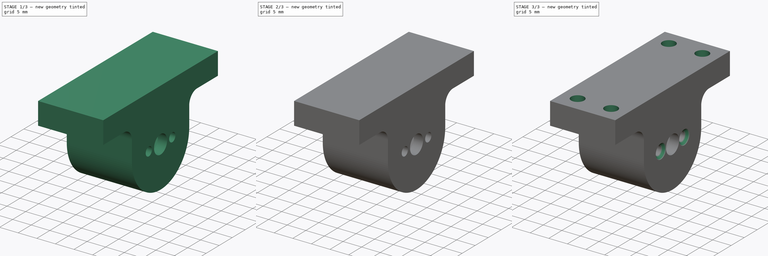
[diagram: build sequence overview — one tinted view per stage of 3, left to right]
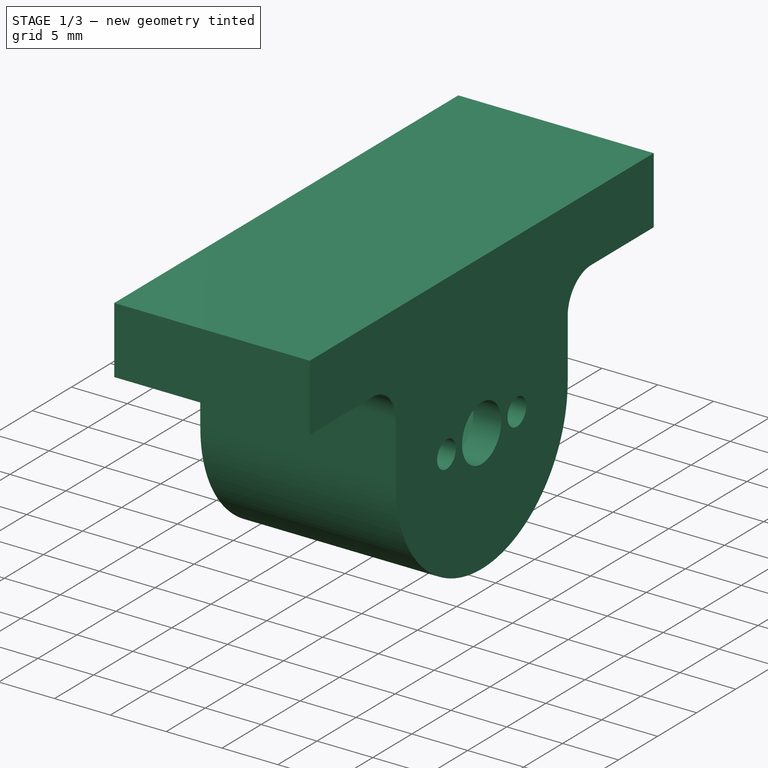
[diagram: stage 1 of 3 — iso view after this stage's code; geometry added in this stage tinted green]
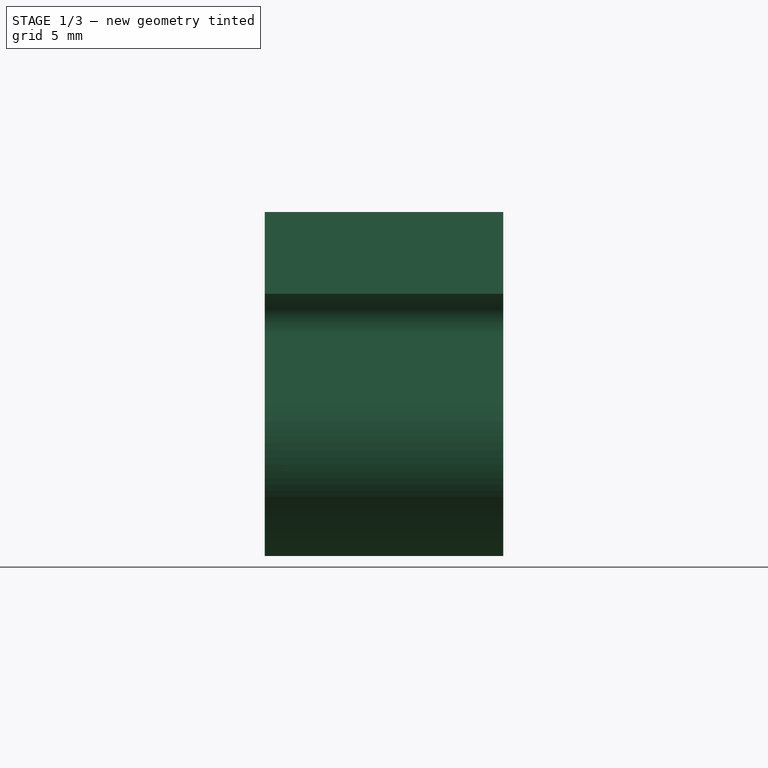
[diagram: stage 1 of 3 — front view after this stage's code; geometry added in this stage tinted green]
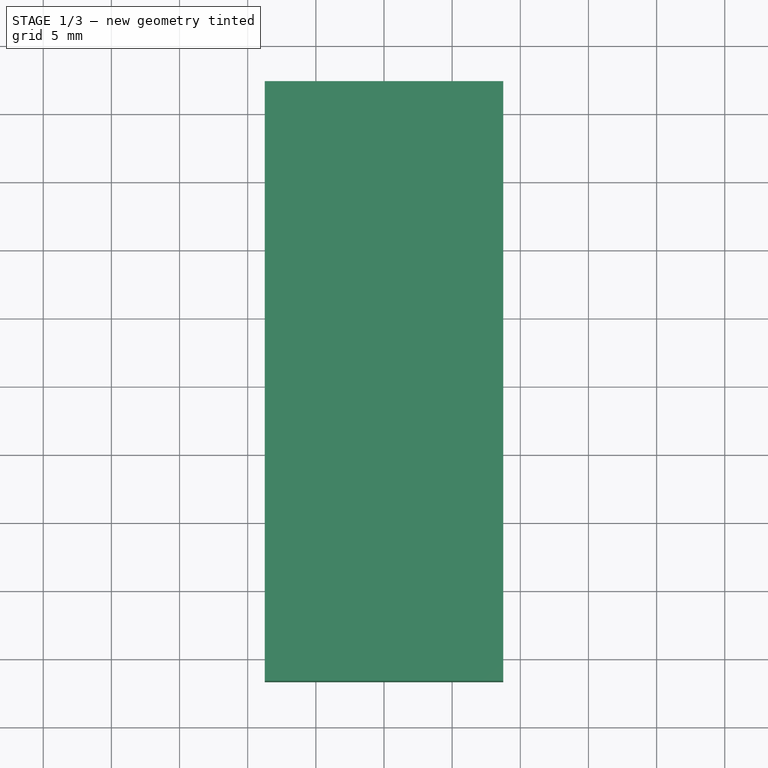
[diagram: stage 1 of 3 — top view after this stage's code; geometry added in this stage tinted green]
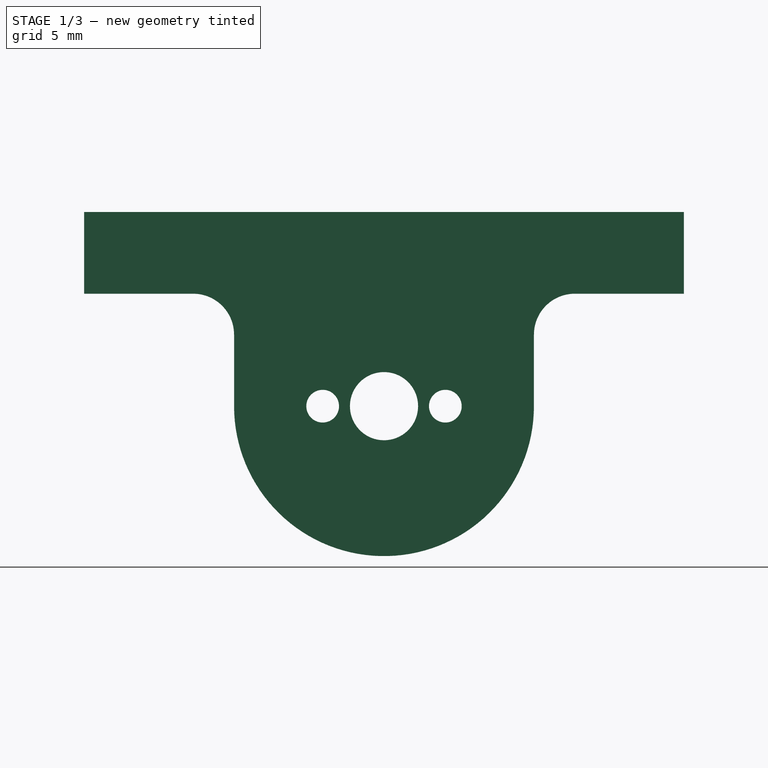
[diagram: stage 1 of 3 — right view after this stage's code; geometry added in this stage tinted green]
FCSTD DOCUMENT  (FreeCAD 0.17R13541 (Git))
Label: Minirobots_2-motor-support
License: All rights reserved
LicenseURL: http://en.wikipedia.org/wiki/All_rights_reserved
objects: Sketcher::SketchObject×4, PartDesign::Pocket×3, PartDesign::Pad×1, PartDesign::Chamfer×1, PartDesign::Body×1
note: 14 computed .brp shape members not serialized (recipe doc carries the construction recipe); baked Part::Feature solids carry a one-line shape summary decoded from their .brp

FEATURE [Sketcher::SketchObject] Sketch
  MapMode = 5
  Placement = pos=(0,0,0) rot=(0.57735,0.57735,0.57735;2.0944rad)
  Support = -> [YZ_Plane]
  sketch-geometry (13):
    g0: LineSegment StartX=-22 StartY=14.25 StartZ=0 EndX=22 EndY=14.25 EndZ=0
    g1: LineSegment StartX=22 StartY=14.25 StartZ=0 EndX=22 EndY=8.25 EndZ=0
    g2: LineSegment StartX=22 StartY=8.25 StartZ=0 EndX=14 EndY=8.25 EndZ=0
    g3: LineSegment StartX=11 StartY=5.25 StartZ=0 EndX=11 EndY=0 EndZ=0
    g4: LineSegment StartX=-11 StartY=0 StartZ=0 EndX=-11 EndY=5.25 EndZ=0
    g5: LineSegment StartX=-14 StartY=8.25 StartZ=0 EndX=-22 EndY=8.25 EndZ=0
    g6: LineSegment StartX=-22 StartY=8.25 StartZ=0 EndX=-22 EndY=14.25 EndZ=0
    g7: ArcOfCircle CenterX=0 CenterY=0 CenterZ=0 NormalX=0 NormalY=0 NormalZ=1 AngleXU=0 Radius=11 StartAngle=3.14159 EndAngle=6.28319
    g8: ArcOfCircle CenterX=-14 CenterY=5.25 CenterZ=0 NormalX=0 NormalY=0 NormalZ=1 AngleXU=0 Radius=3 StartAngle=0 EndAngle=1.5708
    g9: ArcOfCircle CenterX=14 CenterY=5.25 CenterZ=0 NormalX=0 NormalY=0 NormalZ=1 AngleXU=0 Radius=3 StartAngle=1.5708 EndAngle=3.14159
    g10: Circle CenterX=-4.5 CenterY=0 CenterZ=0 NormalX=0 NormalY=0 NormalZ=1 AngleXU=0 Radius=1.2
    g11: Circle CenterX=4.5 CenterY=0 CenterZ=0 NormalX=0 NormalY=0 NormalZ=1 AngleXU=0 Radius=1.2
    g12: Circle CenterX=0 CenterY=0 CenterZ=0 NormalX=0 NormalY=0 NormalZ=1 AngleXU=0 Radius=2.5
  constraints (34):
    c: Horizontal(g0)
    c: Coincident(g0,g1)
    c: Vertical(g1)
    c: Coincident(g1,g2)
    c: Horizontal(g2)
    c: Vertical(g3)
    c: Vertical(g4)
    c: Horizontal(g5)
    c: Coincident(g5,g6)
    c: Coincident(g6,g0)
    c: Vertical(g6)
    c: Symmetric(g0,g0,g-2)
    c: Radius(g7) = 11
    c: Coincident(g-1,g7)
    c: Tangent(g4,g7) = 1.5708
    c: Tangent(g7,g3) = 1.5708
    c: Equal(g6,g1)
    c: Tangent(g5,g8) = -1.5708
    c: Tangent(g4,g8) = -1.5708
    c: Tangent(g2,g9) = -1.5708
    c: Tangent(g3,g9) = -1.5708
    c: DistanceY(g6,g6) = 6
    c: DistanceY(g0) = 14.25
    c: Equal(g8,g9)
    c: DistanceX(g0,g0) = 44
    c: Radius(g9) = 3
    c: PointOnObject(g10,g-1)
    c: PointOnObject(g11,g-1)
    c: Equal(g10,g11)
    c: Radius(g10) = 1.2
    c: Symmetric(g11,g10,g-2)
    c: DistanceX(g10,g11) = 9
    c: Coincident(g12,g-1)
    c: Radius(g12) = 2.5
FEATURE [PartDesign::Pad] Pad
  Length = 17.5
  Length2 = 100
  Midplane = true
  Placement = pos=(0,0,0) rot=(0.57735,0.57735,0.57735;2.0944rad)
  Profile = -> Sketch
  Type = 0
FEATURE [Sketcher::SketchObject] Sketch001
  MapMode = 5
  Placement = pos=(-8.75,0,0) rot=(0.57735,0.57735,-0.57735;4.18879rad)
  Support = -> [Pad]
  sketch-geometry (1):
    g0: Circle CenterX=0 CenterY=0 CenterZ=0 NormalX=0 NormalY=0 NormalZ=1 AngleXU=0 Radius=8.25
  constraints (2):
    c: Coincident(g0,g-1)
    c: Radius(g0) = 8.25
FEATURE [PartDesign::Pocket] Pocket
  BaseFeature = -> Pad
  Length = 15
  Length2 = 100
  Placement = pos=(0,0,0) rot=(0.57735,0.57735,0.57735;2.0944rad)
  Profile = -> Sketch001
  Type = 0
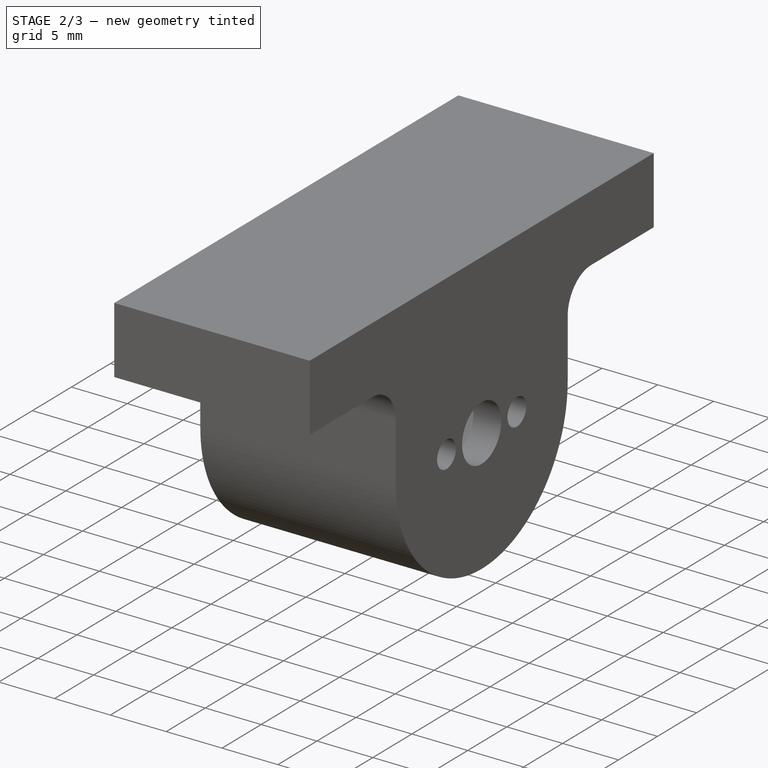
[diagram: stage 2 of 3 — iso view after this stage's code; geometry added in this stage tinted green]
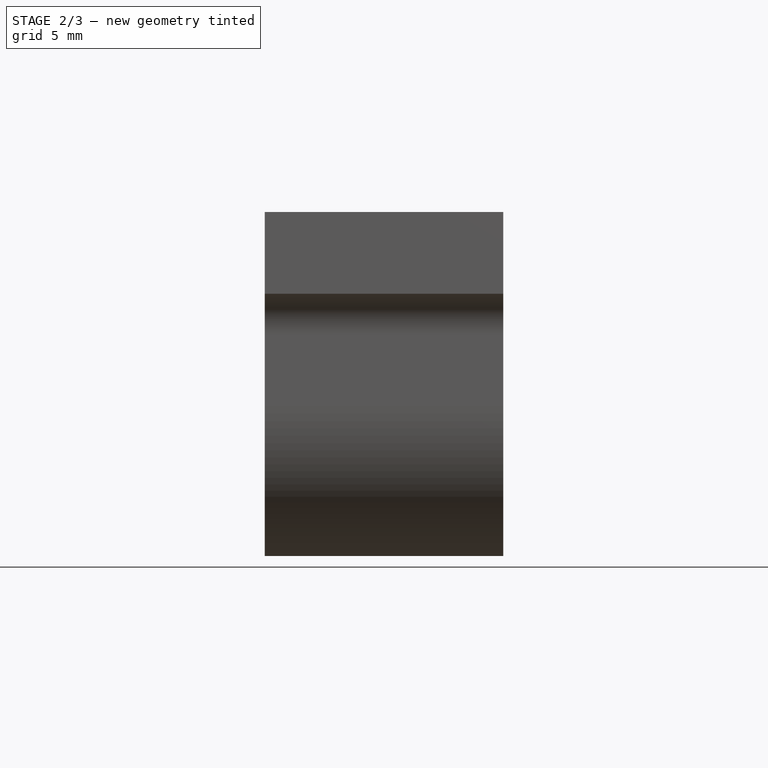
[diagram: stage 2 of 3 — front view after this stage's code; geometry added in this stage tinted green]
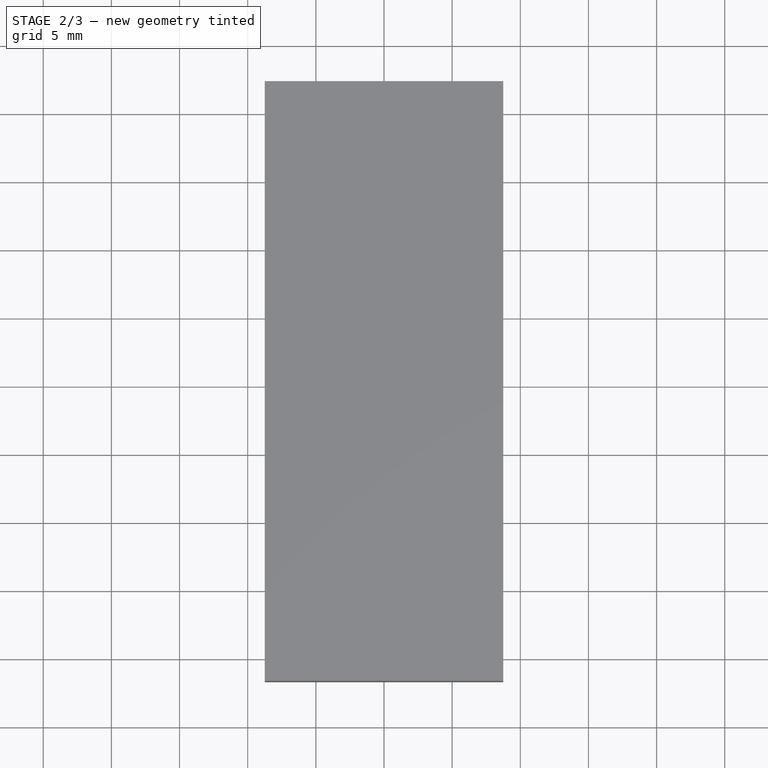
[diagram: stage 2 of 3 — top view after this stage's code; geometry added in this stage tinted green]
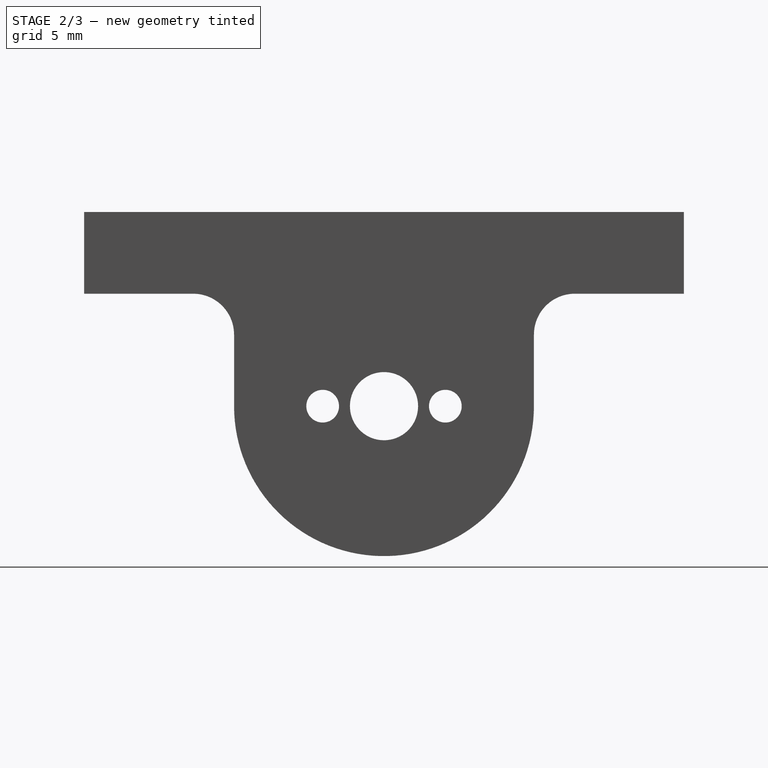
[diagram: stage 2 of 3 — right view after this stage's code; geometry added in this stage tinted green]
FEATURE [Sketcher::SketchObject] Sketch002
  MapMode = 5
  Placement = pos=(0,0,8.25) rot=(0.707107,0.707107,0;3.14159rad)
  Support = -> [Pocket]
  sketch-geometry (32):
    g0: LineSegment [constr] StartX=-17.5 StartY=4.5 StartZ=0 EndX=17.5 EndY=4.5 EndZ=0
    g1: LineSegment [constr] StartX=17.5 StartY=4.5 StartZ=0 EndX=17.5 EndY=-4.5 EndZ=0
    g2: LineSegment [constr] StartX=17.5 StartY=-4.5 StartZ=0 EndX=-17.5 EndY=-4.5 EndZ=0
    g3: LineSegment [constr] StartX=-17.5 StartY=-4.5 StartZ=0 EndX=-17.5 EndY=4.5 EndZ=0
    g4: LineSegment StartX=-15.8257 StartY=7.4 StartZ=0 EndX=-19.1743 EndY=7.4 EndZ=0
    g5: LineSegment StartX=-19.1743 StartY=7.4 StartZ=0 EndX=-20.8486 EndY=4.5 EndZ=0
    g6: LineSegment StartX=-20.8486 StartY=4.5 StartZ=0 EndX=-19.1743 EndY=1.6 EndZ=0
    g7: LineSegment StartX=-19.1743 StartY=1.6 StartZ=0 EndX=-15.8257 EndY=1.6 EndZ=0
    g8: LineSegment StartX=-15.8257 StartY=1.6 StartZ=0 EndX=-14.1514 EndY=4.5 EndZ=0
    g9: LineSegment StartX=-14.1514 StartY=4.5 StartZ=0 EndX=-15.8257 EndY=7.4 EndZ=0
    g10: Circle [constr] CenterX=-17.5 CenterY=4.5 CenterZ=0 NormalX=0 NormalY=0 NormalZ=1 AngleXU=0 Radius=3.34863
    g11: LineSegment StartX=-14.1514 StartY=-4.5 StartZ=0 EndX=-15.8257 EndY=-1.6 EndZ=0
    g12: LineSegment StartX=-15.8257 StartY=-1.6 StartZ=0 EndX=-19.1743 EndY=-1.6 EndZ=0
    g13: LineSegment StartX=-19.1743 StartY=-1.6 StartZ=0 EndX=-20.8486 EndY=-4.5 EndZ=0
    g14: LineSegment StartX=-20.8486 StartY=-4.5 StartZ=0 EndX=-19.1743 EndY=-7.4 EndZ=0
    g15: LineSegment StartX=-19.1743 StartY=-7.4 StartZ=0 EndX=-15.8257 EndY=-7.4 EndZ=0
    g16: LineSegment StartX=-15.8257 StartY=-7.4 StartZ=0 EndX=-14.1514 EndY=-4.5 EndZ=0
    g17: Circle [constr] CenterX=-17.5 CenterY=-4.5 CenterZ=0 NormalX=0 NormalY=0 NormalZ=1 AngleXU=0 Radius=3.34863
    g18: LineSegment StartX=19.1743 StartY=1.6 StartZ=0 EndX=20.8486 EndY=4.5 EndZ=0
    g19: LineSegment StartX=20.8486 StartY=4.5 StartZ=0 EndX=19.1743 EndY=7.4 EndZ=0
    g20: LineSegment StartX=19.1743 StartY=7.4 StartZ=0 EndX=15.8257 EndY=7.4 EndZ=0
    g21: LineSegment StartX=15.8257 StartY=7.4 StartZ=0 EndX=14.1514 EndY=4.5 EndZ=0
    g22: LineSegment StartX=14.1514 StartY=4.5 StartZ=0 EndX=15.8257 EndY=1.6 EndZ=0
    g23: LineSegment StartX=15.8257 StartY=1.6 StartZ=0 EndX=19.1743 EndY=1.6 EndZ=0
    g24: Circle [constr] CenterX=17.5 CenterY=4.5 CenterZ=0 NormalX=0 NormalY=0 NormalZ=1 AngleXU=0 Radius=3.34863
    g25: LineSegment StartX=19.1743 StartY=-7.4 StartZ=0 EndX=20.8486 EndY=-4.5 EndZ=0
    g26: LineSegment StartX=20.8486 StartY=-4.5 StartZ=0 EndX=19.1743 EndY=-1.6 EndZ=0
    g27: LineSegment StartX=19.1743 StartY=-1.6 StartZ=0 EndX=15.8257 EndY=-1.6 EndZ=0
    g28: LineSegment StartX=15.8257 StartY=-1.6 StartZ=0 EndX=14.1514 EndY=-4.5 EndZ=0
    g29: LineSegment StartX=14.1514 StartY=-4.5 StartZ=0 EndX=15.8257 EndY=-7.4 EndZ=0
    g30: LineSegment StartX=15.8257 StartY=-7.4 StartZ=0 EndX=19.1743 EndY=-7.4 EndZ=0
    g31: Circle [constr] CenterX=17.5 CenterY=-4.5 CenterZ=0 NormalX=0 NormalY=0 NormalZ=1 AngleXU=0 Radius=3.34863
  constraints (76):
    c: Coincident(g0,g1)
    c: Coincident(g1,g2)
    c: Coincident(g2,g3)
    c: Coincident(g3,g0)
    c: Horizontal(g0)
    c: Horizontal(g2)
    c: Vertical(g1)
    c: Vertical(g3)
    c: Coincident(g4,g5)
    c: Coincident(g5,g6)
    c: Coincident(g6,g7)
    c: Coincident(g7,g8)
    c: Coincident(g8,g9)
    c: Coincident(g9,g4)
    c: Equal(g4, g5-g9) x5
    c: PointOnObject(g4,g10)
    c: PointOnObject(g5,g10)
    c: PointOnObject(g6,g10)
    c: PointOnObject(g7,g10)
    c: PointOnObject(g8,g10)
    c: PointOnObject(g9,g10)
    c: Coincident(g10,g0)
    c: Coincident(g11,g12)
    c: Coincident(g12,g13)
    c: Coincident(g13,g14)
    c: Coincident(g14,g15)
    c: Coincident(g15,g16)
    c: Coincident(g16,g11)
    c: Equal(g11, g12-g16) x5
    c: PointOnObject(g11,g17)
    c: PointOnObject(g12,g17)
    c: PointOnObject(g13,g17)
    c: PointOnObject(g14,g17)
    c: PointOnObject(g15,g17)
    c: PointOnObject(g16,g17)
    c: Coincident(g17,g2)
    c: Coincident(g18,g19)
    c: Coincident(g19,g20)
    c: Coincident(g20,g21)
    c: Coincident(g21,g22)
    c: Coincident(g22,g23)
    c: Coincident(g23,g18)
    c: Equal(g18, g19-g23) x5
    c: PointOnObject(g18,g24)
    c: PointOnObject(g19,g24)
    c: PointOnObject(g20,g24)
    c: PointOnObject(g21,g24)
    c: PointOnObject(g22,g24)
    c: PointOnObject(g23,g24)
    c: Coincident(g25,g26)
    c: Coincident(g26,g27)
    c: Coincident(g27,g28)
    c: Coincident(g28,g29)
    c: Coincident(g29,g30)
    c: Coincident(g30,g25)
    c: Equal(g25, g26-g30) x5
    c: PointOnObject(g25,g31)
    c: PointOnObject(g26,g31)
    c: PointOnObject(g27,g31)
    c: PointOnObject(g28,g31)
    c: PointOnObject(g29,g31)
    c: PointOnObject(g30,g31)
    c: Coincident(g31,g1)
    c: Equal(g17,g10)
    c: Equal(g10,g24)
    c: Equal(g24,g31)
    c: Horizontal(g7)
    c: Horizontal(g15)
    c: Horizontal(g30)
    c: Horizontal(g23)
    c: Symmetric(g0,g2,g-1)
    c: Symmetric(g0,g0,g-2)
    c: DistanceY(g3,g3) = 9
    c: DistanceY(g6,g4) = 5.8
    c: Coincident(g24,g0)
    c: DistanceX(g0,g0) = 35
FEATURE [PartDesign::Pocket] Pocket001
  BaseFeature = -> Pocket
  Length = 3
  Length2 = 100
  Placement = pos=(0,0,0) rot=(0.57735,0.57735,0.57735;2.0944rad)
  Profile = -> Sketch002
  Type = 0
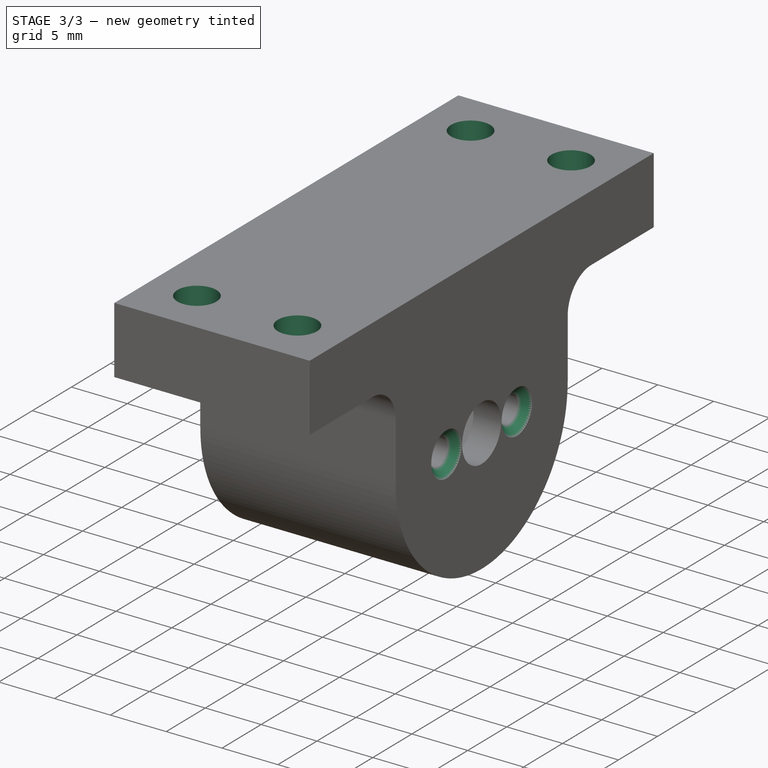
[diagram: stage 3 of 3 — iso view after this stage's code; geometry added in this stage tinted green]
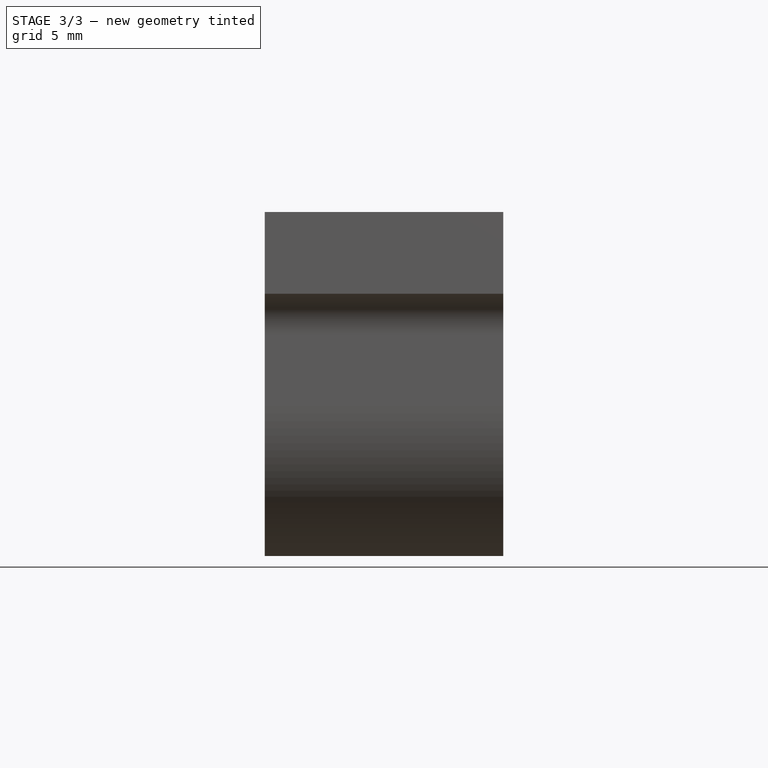
[diagram: stage 3 of 3 — front view after this stage's code; geometry added in this stage tinted green]
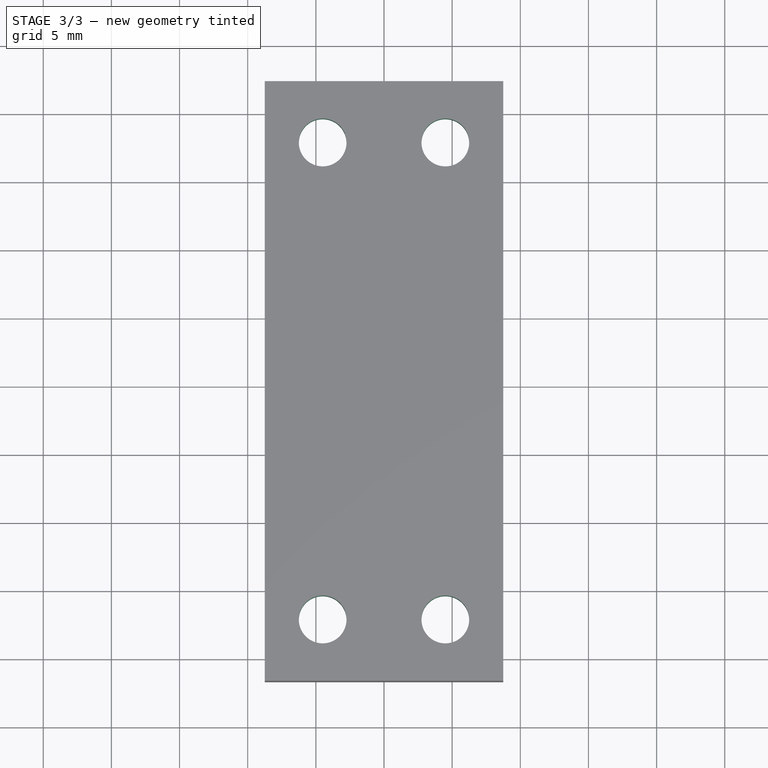
[diagram: stage 3 of 3 — top view after this stage's code; geometry added in this stage tinted green]
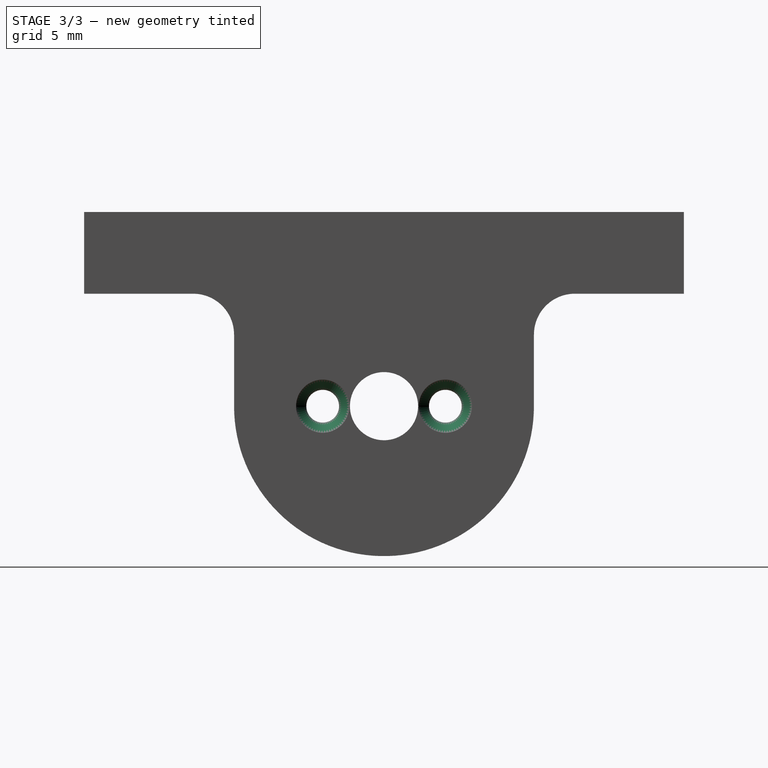
[diagram: stage 3 of 3 — right view after this stage's code; geometry added in this stage tinted green]
FEATURE [Sketcher::SketchObject] Sketch003
  MapMode = 5
  Placement = pos=(0,0,8.25) rot=(0.707107,0.707107,0;3.14159rad)
  Support = -> [Pocket001]
  sketch-geometry (8):
    g0: LineSegment [constr] StartX=-17.5 StartY=4.5 StartZ=0 EndX=17.5 EndY=4.5 EndZ=0
    g1: LineSegment [constr] StartX=17.5 StartY=4.5 StartZ=0 EndX=17.5 EndY=-4.5 EndZ=0
    g2: LineSegment [constr] StartX=17.5 StartY=-4.5 StartZ=0 EndX=-17.5 EndY=-4.5 EndZ=0
    g3: LineSegment [constr] StartX=-17.5 StartY=-4.5 StartZ=0 EndX=-17.5 EndY=4.5 EndZ=0
    g4: Circle CenterX=-17.5 CenterY=4.5 CenterZ=0 NormalX=0 NormalY=0 NormalZ=1 AngleXU=0 Radius=1.75
    g5: Circle CenterX=-17.5 CenterY=-4.5 CenterZ=0 NormalX=0 NormalY=0 NormalZ=1 AngleXU=0 Radius=1.75
    g6: Circle CenterX=17.5 CenterY=-4.5 CenterZ=0 NormalX=0 NormalY=0 NormalZ=1 AngleXU=0 Radius=1.75
    g7: Circle CenterX=17.5 CenterY=4.5 CenterZ=0 NormalX=0 NormalY=0 NormalZ=1 AngleXU=0 Radius=1.75
  constraints (20):
    c: Coincident(g0,g1)
    c: Coincident(g1,g2)
    c: Coincident(g2,g3)
    c: Coincident(g3,g0)
    c: Horizontal(g0)
    c: Horizontal(g2)
    c: Vertical(g1)
    c: Vertical(g3)
    c: Symmetric(g0,g0,g-2)
    c: Symmetric(g0,g2,g-1)
    c: DistanceY(g3,g3) = 9
    c: DistanceX(g0,g0) = 35
    c: Coincident(g4,g0)
    c: Coincident(g5,g2)
    c: Coincident(g6,g1)
    c: Coincident(g7,g0)
    c: Equal(g4,g5)
    c: Equal(g5,g7)
    c: Equal(g7,g6)
    c: Radius(g7) = 1.75
FEATURE [PartDesign::Pocket] Pocket002
  BaseFeature = -> Pocket001
  Length = 5
  Length2 = 100
  Placement = pos=(0,0,0) rot=(0.57735,0.57735,0.57735;2.0944rad)
  Profile = -> Sketch003
  Type = 1
FEATURE [PartDesign::Chamfer] Chamfer
  Base = -> Pocket002 [Edge27,Edge28]
  BaseFeature = -> Pocket002
  Placement = pos=(0,0,0) rot=(0.57735,0.57735,0.57735;2.0944rad)
  Size = 0.75
FEATURE [PartDesign::Body] Body
  Group = -> [Sketch,Pad,Sketch001,Pocket,Sketch002,Pocket001,Sketch003,Pocket002,Chamfer]
  Origin = -> Origin
  Tip = -> Chamfer
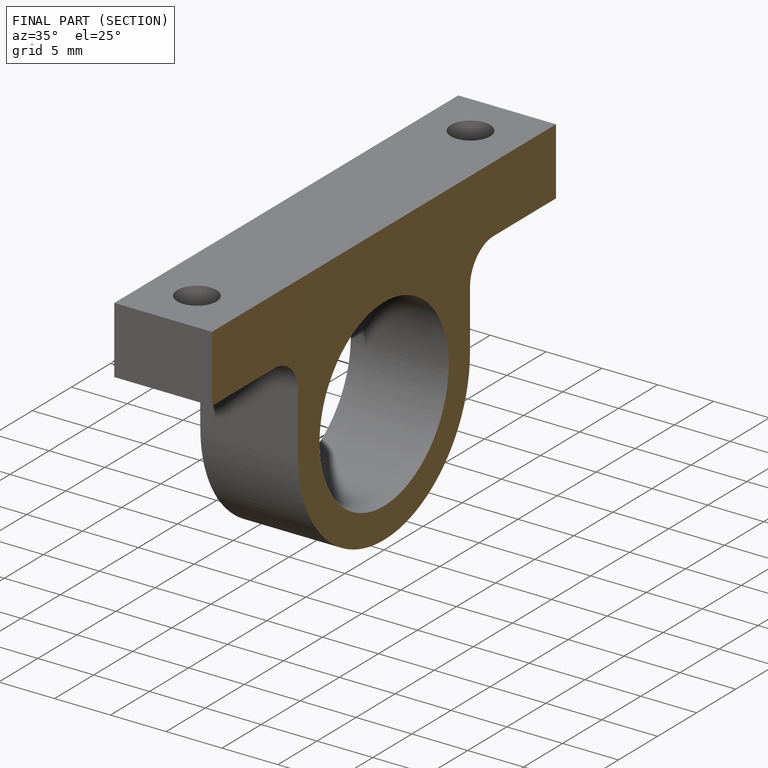
[diagram: finished part — half-section view (interior)]
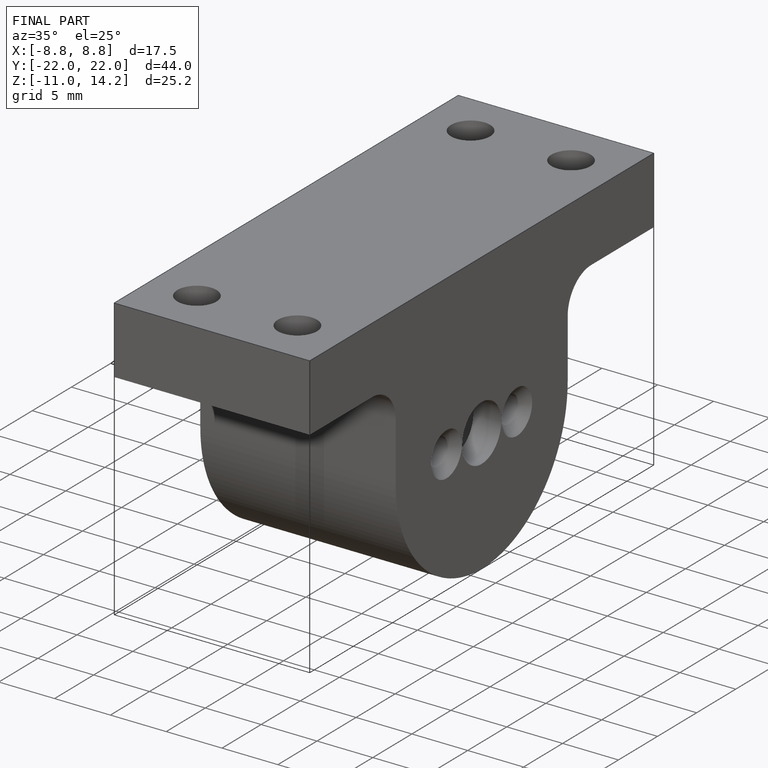
[diagram: finished part — iso view with bounding-box wireframe]
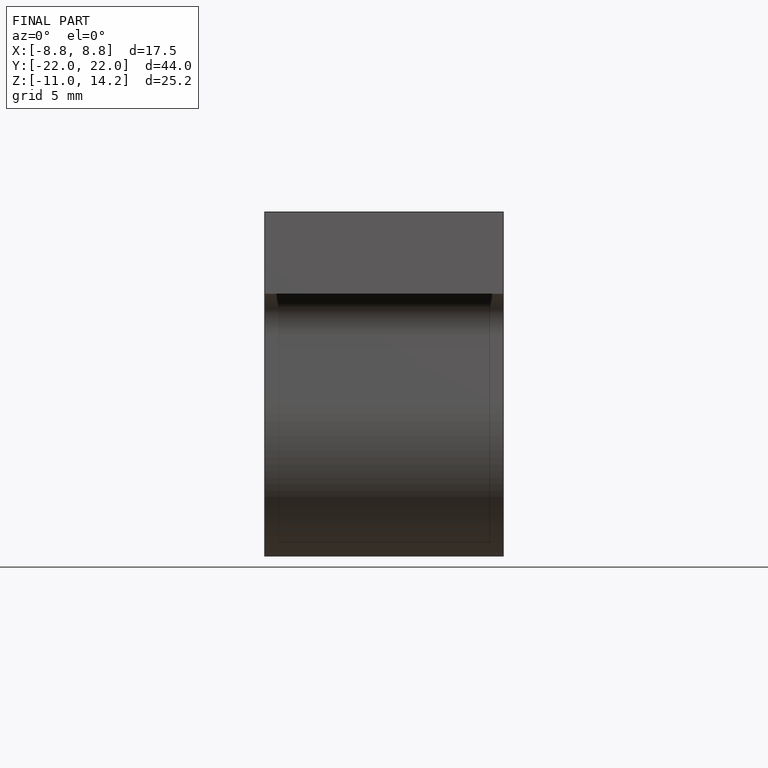
[diagram: finished part — front view with bounding-box wireframe]
